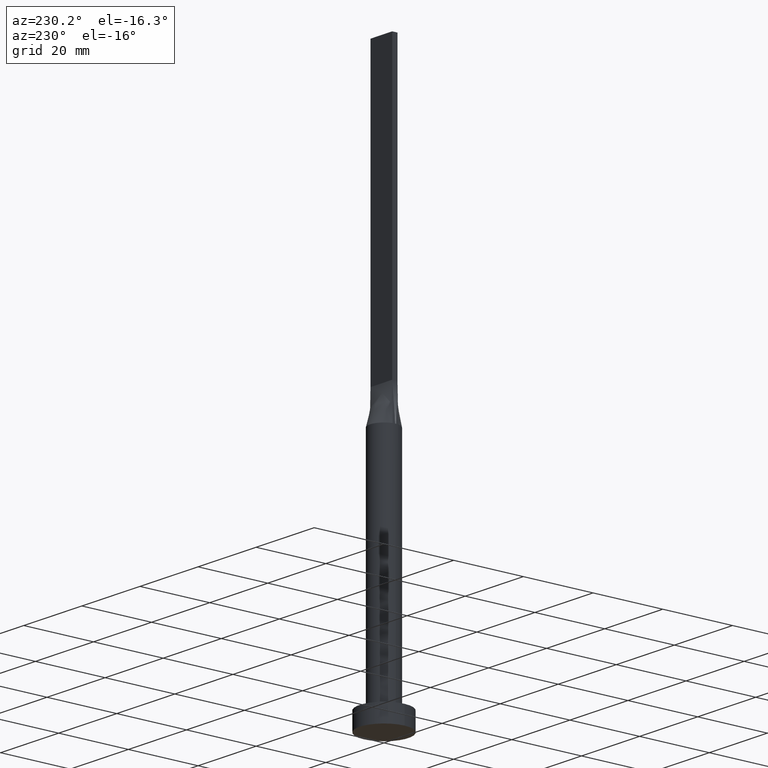
[diagram: clean part render]
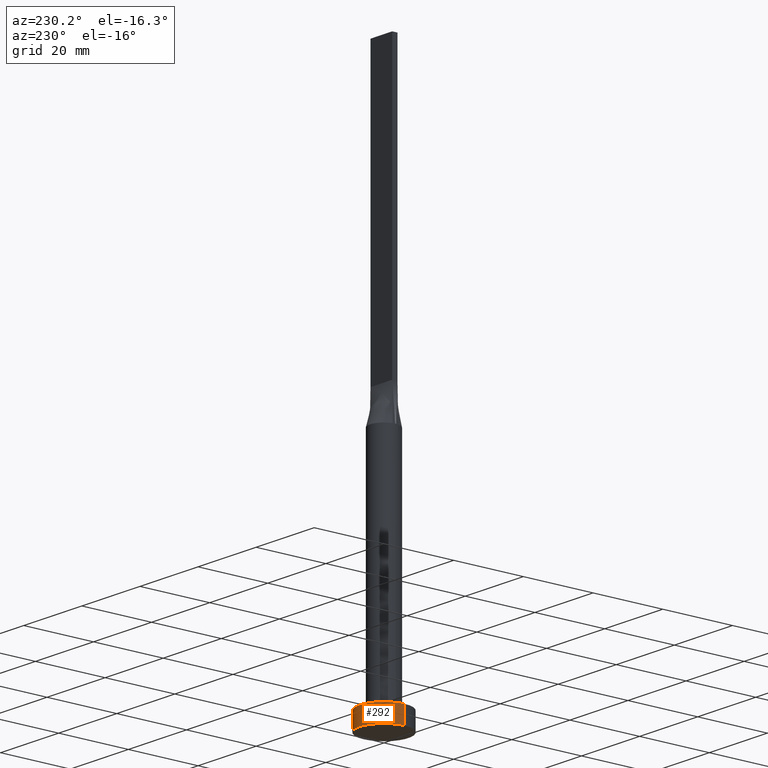
[diagram: same view with one face highlighted and labeled with its STEP entity id]
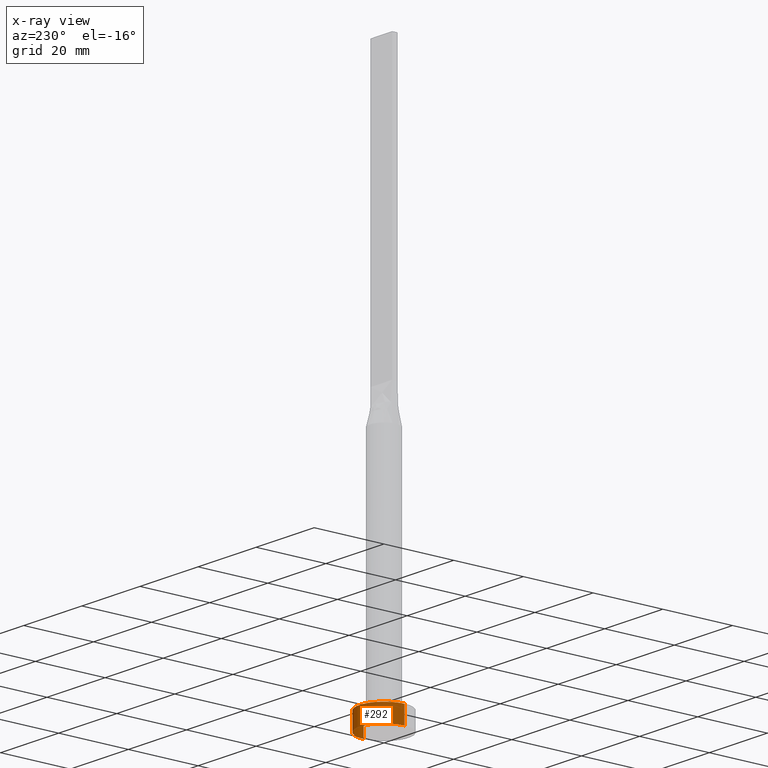
[diagram: x-ray of the same camera — body ghosted, the highlighted face saturated]
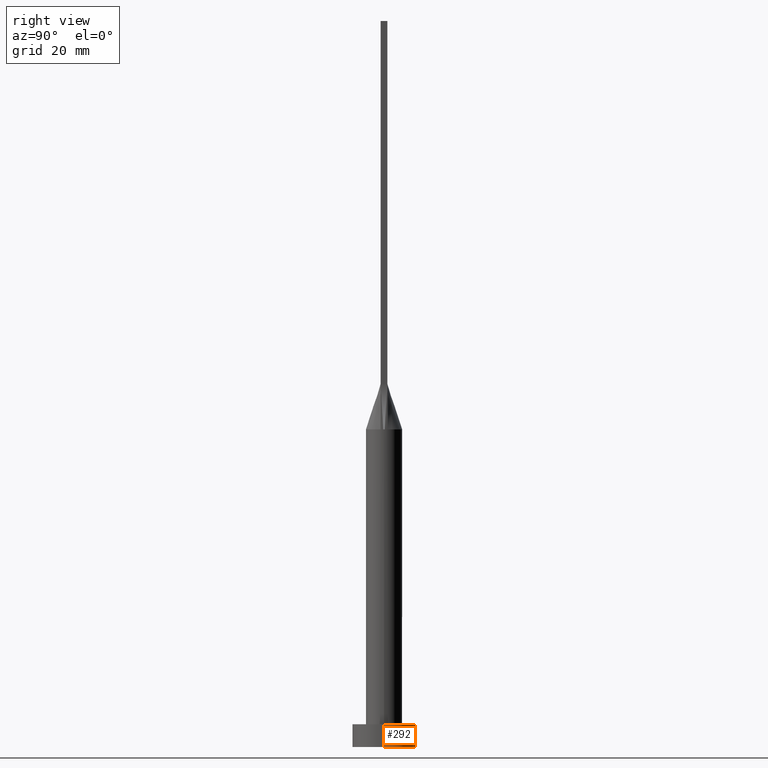
[diagram: same view with one face highlighted and labeled with its STEP entity id]
A machine part, auxiliary view. The second image highlights one B-rep face of the part: STEP entity #292.
The next image is the same camera in x-ray: the body ghosted, the highlighted face saturated — about 0% of this face is hidden behind the body in this view.
A second angle (right view) of the same face is appended — the face is thin or edge-on in the first view.
In plain terms, the highlighted cylindrical surface (edge-blend (fillet) strip) has radius 7 mm, axis along (-0, -0, -1).
Its self-contained STEP definition (entity closure, byte-faithful):
#66 = DIRECTION ( 'NONE',  ( -1.000000000000000000, 0.000000000000000000, 0.000000000000000000 ) ) ;
#89 = VERTEX_POINT ( 'NONE', #395 ) ;
#107 = DIRECTION ( 'NONE',  ( -0.000000000000000000, -0.000000000000000000, -1.000000000000000000 ) ) ;
#112 = VERTEX_POINT ( 'NONE', #177 ) ;
#118 = VERTEX_POINT ( 'NONE', #464 ) ;
#139 = DIRECTION ( 'NONE',  ( -0.000000000000000000, -0.000000000000000000, -1.000000000000000000 ) ) ;
#151 = FACE_OUTER_BOUND ( 'NONE', #203, .T. ) ;
#154 = AXIS2_PLACEMENT_3D ( 'NONE', #333, #190, #252 ) ;
#177 = CARTESIAN_POINT ( 'NONE',  ( -7.000000000000000000, 0.000000000000000000, 0.000000000000000000 ) ) ;
#181 = ORIENTED_EDGE ( 'NONE', *, *, #411, .T. ) ;
#190 = DIRECTION ( 'NONE',  ( 0.000000000000000000, 0.000000000000000000, 1.000000000000000000 ) ) ;
#195 = CIRCLE ( 'NONE', #154, 7.000000000000000000 ) ;
#203 = EDGE_LOOP ( 'NONE', ( #422, #181, #486, #515 ) ) ;
#206 = VERTEX_POINT ( 'NONE', #429 ) ;
#228 = LINE ( 'NONE', #551, #431 ) ;
#231 = AXIS2_PLACEMENT_3D ( 'NONE', #236, #419, #372 ) ;
#234 = EDGE_CURVE ( 'NONE', #206, #89, #195, .T. ) ;
#236 = CARTESIAN_POINT ( 'NONE',  ( 0.000000000000000000, 0.000000000000000000, 0.000000000000000000 ) ) ;
#252 = DIRECTION ( 'NONE',  ( 1.000000000000000000, 0.000000000000000000, 0.000000000000000000 ) ) ;
#263 = LINE ( 'NONE', #579, #378 ) ;
#283 = AXIS2_PLACEMENT_3D ( 'NONE', #514, #107, #66 ) ;
#292 = ADVANCED_FACE ( 'NONE', ( #151 ), #327, .T. ) ;
#298 = DIRECTION ( 'NONE',  ( -0.000000000000000000, -0.000000000000000000, -1.000000000000000000 ) ) ;
#323 = CIRCLE ( 'NONE', #231, 7.000000000000000000 ) ;
#327 = CYLINDRICAL_SURFACE ( 'NONE', #283, 7.000000000000000000 ) ;
#333 = CARTESIAN_POINT ( 'NONE',  ( 0.000000000000000000, 0.000000000000000000, 5.000000000000000000 ) ) ;
#372 = DIRECTION ( 'NONE',  ( 1.000000000000000000, 0.000000000000000000, 0.000000000000000000 ) ) ;
#378 = VECTOR ( 'NONE', #298, 1000.000000000000000 ) ;
#395 = CARTESIAN_POINT ( 'NONE',  ( -7.000000000000000000, 0.000000000000000000, 5.000000000000000000 ) ) ;
#411 = EDGE_CURVE ( 'NONE', #206, #118, #228, .T. ) ;
#419 = DIRECTION ( 'NONE',  ( 0.000000000000000000, 0.000000000000000000, 1.000000000000000000 ) ) ;
#422 = ORIENTED_EDGE ( 'NONE', *, *, #234, .F. ) ;
#429 = CARTESIAN_POINT ( 'NONE',  ( 7.000000000000000000, 8.572527594031473190E-16, 5.000000000000000000 ) ) ;
#431 = VECTOR ( 'NONE', #139, 1000.000000000000000 ) ;
#464 = CARTESIAN_POINT ( 'NONE',  ( 7.000000000000000000, 8.572527594031473190E-16, 0.000000000000000000 ) ) ;
#485 = EDGE_CURVE ( 'NONE', #118, #112, #323, .T. ) ;
#486 = ORIENTED_EDGE ( 'NONE', *, *, #485, .T. ) ;
#514 = CARTESIAN_POINT ( 'NONE',  ( 0.000000000000000000, 0.000000000000000000, 5.000000000000000000 ) ) ;
#515 = ORIENTED_EDGE ( 'NONE', *, *, #534, .F. ) ;
#534 = EDGE_CURVE ( 'NONE', #89, #112, #263, .T. ) ;
#551 = CARTESIAN_POINT ( 'NONE',  ( 7.000000000000000000, 8.572527594031473190E-16, 5.000000000000000000 ) ) ;
#579 = CARTESIAN_POINT ( 'NONE',  ( -7.000000000000000000, 0.000000000000000000, 5.000000000000000000 ) ) ;